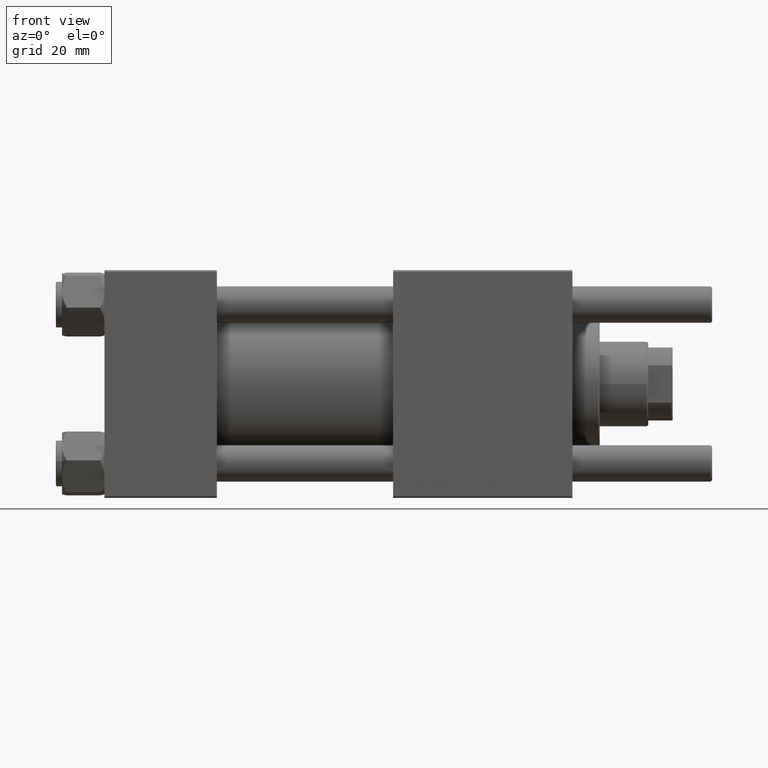
[diagram: clean part render]
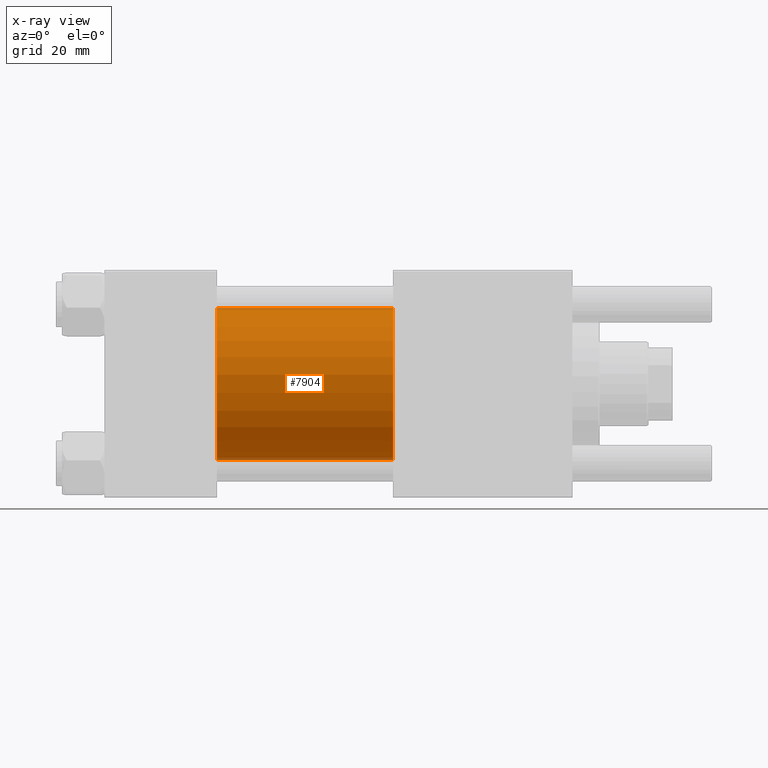
[diagram: x-ray — body ghosted, one internal face saturated and labeled with its STEP entity id]
A machine part, front view, then the same camera in x-ray: the body is ghosted and one INTERNAL B-rep face — a face not visible from any outside direction — is saturated and labeled: STEP entity #7904.
In plain terms, the highlighted cylindrical surface (partial cylindrical patch) has radius 25 mm, axis along (-1, -0, -0).
Its self-contained STEP definition (entity closure, byte-faithful):
#916 = VECTOR ( 'NONE', #46950, 1000.000000000000000 ) ;
#3626 = EDGE_CURVE ( 'NONE', #29228, #10536, #9914, .T. ) ;
#6236 = FACE_OUTER_BOUND ( 'NONE', #12122, .T. ) ;
#6622 = CARTESIAN_POINT ( 'NONE',  ( 95.00000000000000000, 4.595317839031718093E-16, -25.00000000000000000 ) ) ;
#6692 = DIRECTION ( 'NONE',  ( 0.000000000000000000, 0.000000000000000000, -1.000000000000000000 ) ) ;
#7254 = CARTESIAN_POINT ( 'NONE',  ( 37.00000000000000000, -2.602085213965210642E-15, 25.00000000000000000 ) ) ;
#7904 = ADVANCED_FACE ( 'NONE', ( #6236 ), #50242, .F. ) ;
#8386 = CARTESIAN_POINT ( 'NONE',  ( 95.00000000000000000, -2.602085213965210642E-15, 0.000000000000000000 ) ) ;
#9914 = LINE ( 'NONE', #35510, #32759 ) ;
#10536 = VERTEX_POINT ( 'NONE', #7254 ) ;
#11412 = DIRECTION ( 'NONE',  ( -1.000000000000000000, -0.000000000000000000, -0.000000000000000000 ) ) ;
#12122 = EDGE_LOOP ( 'NONE', ( #46183, #19542, #17285, #29449 ) ) ;
#13536 = AXIS2_PLACEMENT_3D ( 'NONE', #28670, #11412, #33535 ) ;
#16465 = LINE ( 'NONE', #24809, #916 ) ;
#17285 = ORIENTED_EDGE ( 'NONE', *, *, #29900, .F. ) ;
#19542 = ORIENTED_EDGE ( 'NONE', *, *, #47846, .T. ) ;
#21324 = DIRECTION ( 'NONE',  ( 1.000000000000000000, 0.000000000000000000, 0.000000000000000000 ) ) ;
#21340 = AXIS2_PLACEMENT_3D ( 'NONE', #29097, #46645, #6692 ) ;
#24809 = CARTESIAN_POINT ( 'NONE',  ( 95.00000000000000000, 4.595317839031718093E-16, -25.00000000000000000 ) ) ;
#27063 = CARTESIAN_POINT ( 'NONE',  ( 95.00000000000000000, -2.602085213965210642E-15, 25.00000000000000000 ) ) ;
#28670 = CARTESIAN_POINT ( 'NONE',  ( 95.00000000000000000, -2.602085213965210642E-15, 0.000000000000000000 ) ) ;
#29097 = CARTESIAN_POINT ( 'NONE',  ( 37.00000000000000000, -2.602085213965210642E-15, 0.000000000000000000 ) ) ;
#29228 = VERTEX_POINT ( 'NONE', #27063 ) ;
#29449 = ORIENTED_EDGE ( 'NONE', *, *, #3626, .F. ) ;
#29900 = EDGE_CURVE ( 'NONE', #10536, #31328, #38788, .T. ) ;
#31328 = VERTEX_POINT ( 'NONE', #50977 ) ;
#32759 = VECTOR ( 'NONE', #48455, 1000.000000000000000 ) ;
#32999 = CIRCLE ( 'NONE', #34849, 25.00000000000000000 ) ;
#33535 = DIRECTION ( 'NONE',  ( 0.000000000000000000, 0.000000000000000000, 1.000000000000000000 ) ) ;
#34541 = DIRECTION ( 'NONE',  ( 0.000000000000000000, 0.000000000000000000, -1.000000000000000000 ) ) ;
#34849 = AXIS2_PLACEMENT_3D ( 'NONE', #8386, #21324, #34541 ) ;
#35510 = CARTESIAN_POINT ( 'NONE',  ( 95.00000000000000000, -2.602085213965210642E-15, 25.00000000000000000 ) ) ;
#38788 = CIRCLE ( 'NONE', #21340, 25.00000000000000000 ) ;
#46183 = ORIENTED_EDGE ( 'NONE', *, *, #46605, .T. ) ;
#46605 = EDGE_CURVE ( 'NONE', #29228, #48336, #32999, .T. ) ;
#46645 = DIRECTION ( 'NONE',  ( 1.000000000000000000, 0.000000000000000000, 0.000000000000000000 ) ) ;
#46950 = DIRECTION ( 'NONE',  ( -1.000000000000000000, -0.000000000000000000, -0.000000000000000000 ) ) ;
#47846 = EDGE_CURVE ( 'NONE', #48336, #31328, #16465, .T. ) ;
#48336 = VERTEX_POINT ( 'NONE', #6622 ) ;
#48455 = DIRECTION ( 'NONE',  ( -1.000000000000000000, -0.000000000000000000, -0.000000000000000000 ) ) ;
#50242 = CYLINDRICAL_SURFACE ( 'NONE', #13536, 25.00000000000000000 ) ;
#50977 = CARTESIAN_POINT ( 'NONE',  ( 37.00000000000000000, 4.595317839031718093E-16, -25.00000000000000000 ) ) ;